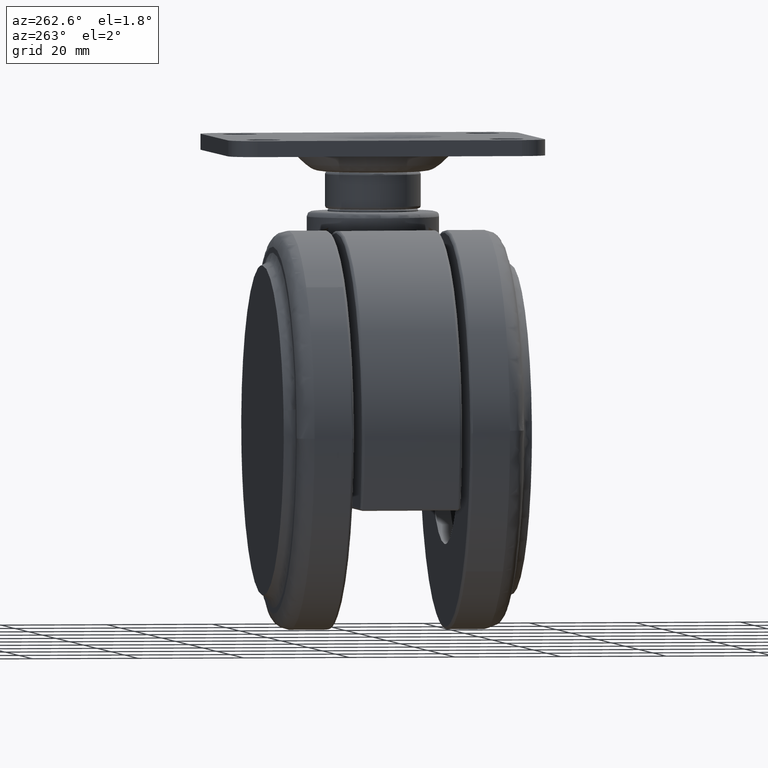
[diagram: clean part render]
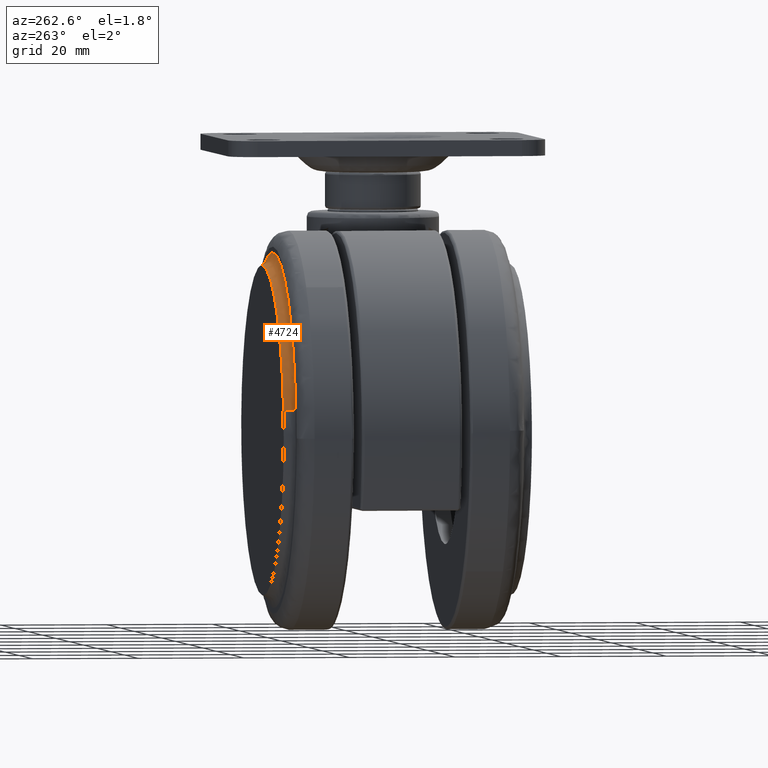
[diagram: same view with one face highlighted and labeled with its STEP entity id]
A machine part, auxiliary view. The second image highlights one B-rep face of the part: STEP entity #4724.
In plain terms, the highlighted face is a freeform B-spline surface patch.
Its self-contained STEP definition (entity closure, byte-faithful):
#4498=CARTESIAN_POINT('',(-20.0,21.500000000000000,-7.116724942436252));
#4499=VERTEX_POINT('',#4498);
#4500=CARTESIAN_POINT('',(-53.004433127192371,21.499999999689958,-35.484977838047683));
#4501=VERTEX_POINT('',#4500);
#4502=CARTESIAN_POINT('',(-20.0,21.500000000000000,-7.116724942436252));
#4503=CARTESIAN_POINT('',(-48.693878349336913,21.499999999844981,-7.116724942702618));
#4504=CARTESIAN_POINT('',(-53.004433127192371,21.499999999689958,-35.484977838047676));
#4512=(BOUNDED_CURVE()B_SPLINE_CURVE(2,(#4502,#4503,#4504),.UNSPECIFIED.,.F.,.U.)B_SPLINE_CURVE_WITH_KNOTS((3,3),(0.500000000000000,0.724102415375611),.UNSPECIFIED.)CURVE()GEOMETRIC_REPRESENTATION_ITEM()RATIONAL_B_SPLINE_CURVE((1.0,0.737447688867071,0.945604234432850))REPRESENTATION_ITEM(''));
#4513=EDGE_CURVE('',#4499,#4501,#4512,.T.);
#4532=CARTESIAN_POINT('',(13.004433127192380,21.499999999689908,-45.515022161952317));
#4533=VERTEX_POINT('',#4532);
#4547=CARTESIAN_POINT('',(13.004433127192371,21.499999999689905,-45.515022161952317));
#4548=CARTESIAN_POINT('',(13.383275054171554,21.499999999699973,-43.021820210467794));
#4549=CARTESIAN_POINT('',(13.383275054303979,21.499999999711690,-40.499999999504681));
#4550=CARTESIAN_POINT('',(13.383275056056988,21.499999999866738,-7.116724942207301));
#4551=CARTESIAN_POINT('',(-20.0,21.500000000000000,-7.116724942436252));
#4559=(BOUNDED_CURVE()B_SPLINE_CURVE(2,(#4547,#4548,#4549,#4550,#4551),.UNSPECIFIED.,.F.,.U.)B_SPLINE_CURVE_WITH_KNOTS((3,2,3),(0.224102415375612,0.250000000000000,0.500000000000000),.UNSPECIFIED.)CURVE()GEOMETRIC_REPRESENTATION_ITEM()RATIONAL_B_SPLINE_CURVE((0.945604234432850,0.969659092319476,1.0,0.707106781186547,1.0))REPRESENTATION_ITEM(''));
#4560=EDGE_CURVE('',#4533,#4499,#4559,.T.);
#4596=CARTESIAN_POINT('',(-50.648204086884860,23.499999999828798,-35.843006737218879));
#4597=VERTEX_POINT('',#4596);
#4598=CARTESIAN_POINT('',(-50.648204086884867,23.499999999828798,-35.843006737218879));
#4599=CARTESIAN_POINT('',(-50.837666863908630,21.308362474778981,-35.814217876509723));
#4600=CARTESIAN_POINT('',(-53.004433127192378,21.499999999689962,-35.484977838047683));
#4608=(BOUNDED_CURVE()B_SPLINE_CURVE(2,(#4598,#4599,#4600),.UNSPECIFIED.,.F.,.U.)B_SPLINE_CURVE_WITH_KNOTS((3,3),(-1.724209565488118,-0.264358935031354),.UNSPECIFIED.)CURVE()GEOMETRIC_REPRESENTATION_ITEM()RATIONAL_B_SPLINE_CURVE((0.884168488227496,0.626637108921307,0.888233568238935))REPRESENTATION_ITEM(''));
#4609=EDGE_CURVE('',#4597,#4501,#4608,.T.);
#4628=CARTESIAN_POINT('',(10.648204086884849,23.499999999828798,-45.156993262781107));
#4629=VERTEX_POINT('',#4628);
#4643=CARTESIAN_POINT('',(10.648204086884849,23.499999999828798,-45.156993262781121));
#4644=CARTESIAN_POINT('',(10.837666863908513,21.308362474778868,-45.185782123490270));
#4645=CARTESIAN_POINT('',(13.004433127192375,21.499999999689908,-45.515022161952324));
#4653=(BOUNDED_CURVE()B_SPLINE_CURVE(2,(#4643,#4644,#4645),.UNSPECIFIED.,.F.,.U.)B_SPLINE_CURVE_WITH_KNOTS((3,3),(-1.724209565488164,-0.264358935031346),.UNSPECIFIED.)CURVE()GEOMETRIC_REPRESENTATION_ITEM()RATIONAL_B_SPLINE_CURVE((0.884168488227512,0.626637108921297,0.888233568238938))REPRESENTATION_ITEM(''));
#4654=EDGE_CURVE('',#4629,#4533,#4653,.T.);
#4659=CARTESIAN_POINT('',(-50.770428663719549,23.653227525717632,-36.700814555948661));
#4660=CARTESIAN_POINT('',(-50.705727361902426,23.653227525717636,-36.275007905412643));
#4661=CARTESIAN_POINT('',(-45.984480656841406,23.653227525717615,-5.203944582474812));
#4662=CARTESIAN_POINT('',(-15.344212619658107,23.653227525717572,-9.859731962816699));
#4663=CARTESIAN_POINT('',(15.296055417525183,23.653227525717519,-14.515519343158587));
#4664=CARTESIAN_POINT('',(10.574808712448828,23.653227525717536,-45.586582666197508));
#4665=CARTESIAN_POINT('',(10.510107410616703,23.653227525717536,-46.012389316832270));
#4666=CARTESIAN_POINT('',(-50.814279000537638,21.123925171574498,-36.695400410985748));
#4667=CARTESIAN_POINT('',(-50.749485494159181,21.123925171574495,-36.268986951709785));
#4668=CARTESIAN_POINT('',(-46.021510632643782,21.123925171574488,-5.153644863373610));
#4669=CARTESIAN_POINT('',(-15.337577748008696,21.123925171574438,-9.816067115364914));
#4670=CARTESIAN_POINT('',(15.346355136626382,21.123925171574388,-14.478489367356225));
#4671=CARTESIAN_POINT('',(10.618380275095610,21.123925171574399,-45.593831455793627));
#4672=CARTESIAN_POINT('',(10.553586768702123,21.123925171574395,-46.020244915168490));
#4673=CARTESIAN_POINT('',(-53.295131359004159,21.518574478330809,-36.389092745527734));
#4674=CARTESIAN_POINT('',(-53.225121338453498,21.518574478330805,-35.928348811211002));
#4675=CARTESIAN_POINT('',(-48.116498025427809,21.518574478330802,-2.307915826443515));
#4676=CARTESIAN_POINT('',(-14.962206925935661,21.518574478330741,-7.345708900507846));
#4677=CARTESIAN_POINT('',(18.192084173556481,21.518574478330692,-12.383501974572185));
#4678=CARTESIAN_POINT('',(13.083460860514165,21.518574478330692,-46.003934959449069));
#4679=CARTESIAN_POINT('',(13.013450839947277,21.518574478330695,-46.464678893872637));
#4687=(BOUNDED_SURFACE()B_SPLINE_SURFACE(2,2,((#4659,#4666,#4673),(#4660,#4667,#4674),(#4661,#4668,#4675),(#4662,#4669,#4676),(#4663,#4670,#4677),(#4664,#4671,#4678),(#4665,#4672,#4679)),.UNSPECIFIED.,.F.,.F.,.U.)B_SPLINE_SURFACE_WITH_KNOTS((3,1,2,1,3),(3,3),(0.0,1.111247279688115,56.673611266273802,112.235975252859500,113.347222532809890),(0.0,4.010137234199200),.UNSPECIFIED.)GEOMETRIC_REPRESENTATION_ITEM()RATIONAL_B_SPLINE_SURFACE(((0.921866358361897,0.606433994689780,0.926389929177657),(0.916528724531910,0.602922723694424,0.921026103737140),(0.644309399192096,0.423847902924391,0.647471006260266),(0.911191090701923,0.599411452699068,0.915662278296624),(0.644309399192096,0.423847902924391,0.647471006260266),(0.916528724533170,0.602922723695253,0.921026103738406),(0.921866358364417,0.606433994691437,0.926389929180189)))REPRESENTATION_ITEM('')SURFACE());
#4688=ORIENTED_EDGE('',*,*,#4560,.F.);
#4689=ORIENTED_EDGE('',*,*,#4654,.F.);
#4690=CARTESIAN_POINT('',(-20.0,23.500000000000000,-9.500000000000002));
#4691=VERTEX_POINT('',#4690);
#4692=CARTESIAN_POINT('',(10.648204086884849,23.499999999828798,-45.156993262781114));
#4693=CARTESIAN_POINT('',(11.000000000014410,23.499999999834348,-42.841784213905868));
#4694=CARTESIAN_POINT('',(11.000000000013850,23.499999999840821,-40.500000000002110));
#4695=CARTESIAN_POINT('',(11.000000000006400,23.499999999926420,-9.500000000000979));
#4696=CARTESIAN_POINT('',(-20.0,23.500000000000000,-9.500000000000002));
#4704=(BOUNDED_CURVE()B_SPLINE_CURVE(2,(#4692,#4693,#4694,#4695,#4696),.UNSPECIFIED.,.F.,.U.)B_SPLINE_CURVE_WITH_KNOTS((3,2,3),(0.224102415376342,0.250000000000000,0.500000000000000),.UNSPECIFIED.)CURVE()GEOMETRIC_REPRESENTATION_ITEM()RATIONAL_B_SPLINE_CURVE((0.945604234434206,0.969659092320332,1.0,0.707106781186548,1.0))REPRESENTATION_ITEM(''));
#4705=EDGE_CURVE('',#4629,#4691,#4704,.T.);
#4706=ORIENTED_EDGE('',*,*,#4705,.T.);
#4707=CARTESIAN_POINT('',(-20.0,23.500000000000000,-9.500000000000002));
#4708=CARTESIAN_POINT('',(-46.645385371991154,23.499999999914404,-9.499999999998869));
#4709=CARTESIAN_POINT('',(-50.648204086884860,23.499999999828798,-35.843006737218879));
#4717=(BOUNDED_CURVE()B_SPLINE_CURVE(2,(#4707,#4708,#4709),.UNSPECIFIED.,.F.,.U.)B_SPLINE_CURVE_WITH_KNOTS((3,3),(0.500000000000000,0.724102415376342),.UNSPECIFIED.)CURVE()GEOMETRIC_REPRESENTATION_ITEM()RATIONAL_B_SPLINE_CURVE((1.0,0.737447688866216,0.945604234434206))REPRESENTATION_ITEM(''));
#4718=EDGE_CURVE('',#4691,#4597,#4717,.T.);
#4719=ORIENTED_EDGE('',*,*,#4718,.T.);
#4720=ORIENTED_EDGE('',*,*,#4609,.T.);
#4721=ORIENTED_EDGE('',*,*,#4513,.F.);
#4722=EDGE_LOOP('',(#4688,#4689,#4706,#4719,#4720,#4721));
#4723=FACE_OUTER_BOUND('',#4722,.T.);
#4724=ADVANCED_FACE('',(#4723),#4687,.F.);